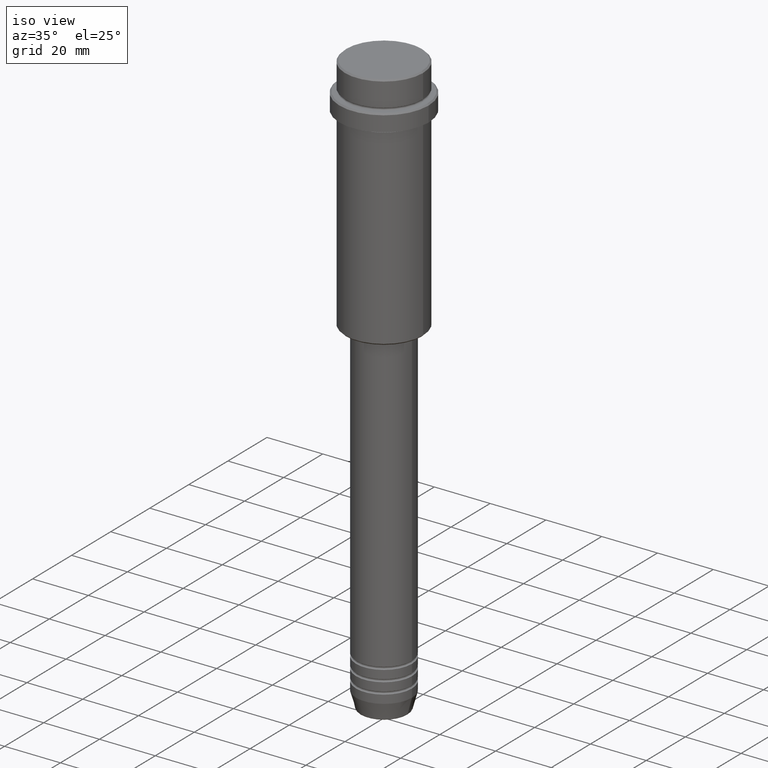
[diagram: clean part render]
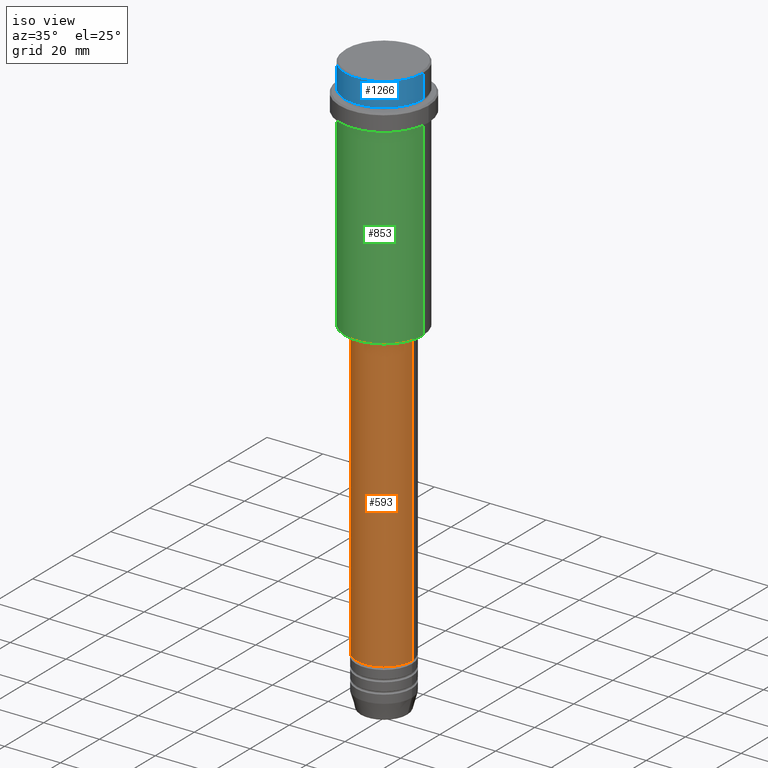
[diagram: same view with three faces highlighted in distinct colors, each labeled with its STEP entity id]
A machine part, iso view with three faces highlighted in distinct colors.
Their STEP definitions:

[orange] entity #593 — the highlighted cylindrical surface (edge-blend (fillet) strip) has radius 10 mm, axis along (-0, -0, 1).
#137 = EDGE_LOOP ( 'NONE', ( #684, #212, #183, #607 ) ) ;
#158 = VERTEX_POINT ( 'NONE', #636 ) ;
#176 = FACE_OUTER_BOUND ( 'NONE', #137, .T. ) ;
#183 = ORIENTED_EDGE ( 'NONE', *, *, #294, .T. ) ;
#212 = ORIENTED_EDGE ( 'NONE', *, *, #519, .T. ) ;
#280 = VECTOR ( 'NONE', #1124, 1000.000000000000000 ) ;
#294 = EDGE_CURVE ( 'NONE', #804, #501, #676, .T. ) ;
#295 = CARTESIAN_POINT ( 'NONE',  ( 10.00000000000000000, 0.000000000000000000, -191.9999999999999147 ) ) ;
#389 = AXIS2_PLACEMENT_3D ( 'NONE', #1255, #527, #936 ) ;
#405 = DIRECTION ( 'NONE',  ( -0.000000000000000000, -0.000000000000000000, 1.000000000000000000 ) ) ;
#406 = EDGE_CURVE ( 'NONE', #1026, #158, #1076, .T. ) ;
#413 = DIRECTION ( 'NONE',  ( 1.000000000000000000, 0.000000000000000000, 0.000000000000000000 ) ) ;
#440 = DIRECTION ( 'NONE',  ( -0.000000000000000000, -0.000000000000000000, 1.000000000000000000 ) ) ;
#459 = VECTOR ( 'NONE', #440, 1000.000000000000000 ) ;
#480 = CIRCLE ( 'NONE', #389, 10.00000000000000000 ) ;
#501 = VERTEX_POINT ( 'NONE', #944 ) ;
#519 = EDGE_CURVE ( 'NONE', #1026, #804, #480, .T. ) ;
#527 = DIRECTION ( 'NONE',  ( -0.000000000000000000, -0.000000000000000000, 1.000000000000000000 ) ) ;
#592 = EDGE_CURVE ( 'NONE', #158, #501, #1055, .T. ) ;
#593 = ADVANCED_FACE ( 'NONE', ( #176 ), #1190, .T. ) ;
#607 = ORIENTED_EDGE ( 'NONE', *, *, #592, .F. ) ;
#636 = CARTESIAN_POINT ( 'NONE',  ( -10.00000000000000178, 1.224646799147353454E-15, -87.00000000000000000 ) ) ;
#644 = CARTESIAN_POINT ( 'NONE',  ( 0.000000000000000000, 0.000000000000000000, -87.00000000000000000 ) ) ;
#676 = LINE ( 'NONE', #753, #459 ) ;
#684 = ORIENTED_EDGE ( 'NONE', *, *, #406, .F. ) ;
#753 = CARTESIAN_POINT ( 'NONE',  ( 10.00000000000000178, 0.000000000000000000, 0.000000000000000000 ) ) ;
#755 = DIRECTION ( 'NONE',  ( 1.000000000000000000, 0.000000000000000000, 0.000000000000000000 ) ) ;
#804 = VERTEX_POINT ( 'NONE', #295 ) ;
#936 = DIRECTION ( 'NONE',  ( 1.000000000000000000, 0.000000000000000000, 0.000000000000000000 ) ) ;
#944 = CARTESIAN_POINT ( 'NONE',  ( 10.00000000000000178, 0.000000000000000000, -87.00000000000000000 ) ) ;
#1026 = VERTEX_POINT ( 'NONE', #1242 ) ;
#1033 = AXIS2_PLACEMENT_3D ( 'NONE', #644, #405, #413 ) ;
#1055 = CIRCLE ( 'NONE', #1033, 10.00000000000000178 ) ;
#1076 = LINE ( 'NONE', #1207, #280 ) ;
#1124 = DIRECTION ( 'NONE',  ( -0.000000000000000000, -0.000000000000000000, 1.000000000000000000 ) ) ;
#1190 = CYLINDRICAL_SURFACE ( 'NONE', #1410, 10.00000000000000178 ) ;
#1207 = CARTESIAN_POINT ( 'NONE',  ( -10.00000000000000178, 1.224646799147353454E-15, 0.000000000000000000 ) ) ;
#1242 = CARTESIAN_POINT ( 'NONE',  ( -10.00000000000000000, 1.224646799147353256E-15, -191.9999999999999147 ) ) ;
#1255 = CARTESIAN_POINT ( 'NONE',  ( 0.000000000000000000, 0.000000000000000000, -191.9999999999999147 ) ) ;
#1278 = DIRECTION ( 'NONE',  ( -0.000000000000000000, -0.000000000000000000, 1.000000000000000000 ) ) ;
#1293 = CARTESIAN_POINT ( 'NONE',  ( 0.000000000000000000, 0.000000000000000000, 0.000000000000000000 ) ) ;
#1410 = AXIS2_PLACEMENT_3D ( 'NONE', #1293, #1278, #755 ) ;

[blue] entity #1266 — the highlighted cylindrical surface (partial cylindrical patch) has radius 14 mm, axis along (-0, -0, 1).
#10 = CARTESIAN_POINT ( 'NONE',  ( 0.000000000000000000, 0.000000000000000000, -0.4999999999999917843 ) ) ;
#26 = ORIENTED_EDGE ( 'NONE', *, *, #103, .T. ) ;
#30 = VERTEX_POINT ( 'NONE', #1383 ) ;
#39 = VECTOR ( 'NONE', #1307, 1000.000000000000000 ) ;
#79 = DIRECTION ( 'NONE',  ( 1.000000000000000000, 0.000000000000000000, 0.000000000000000000 ) ) ;
#92 = VECTOR ( 'NONE', #1092, 1000.000000000000000 ) ;
#103 = EDGE_CURVE ( 'NONE', #832, #487, #824, .T. ) ;
#129 = DIRECTION ( 'NONE',  ( -0.000000000000000000, -0.000000000000000000, 1.000000000000000000 ) ) ;
#174 = CARTESIAN_POINT ( 'NONE',  ( 0.000000000000000000, 0.000000000000000000, 0.000000000000000000 ) ) ;
#224 = DIRECTION ( 'NONE',  ( 1.000000000000000000, 0.000000000000000000, 0.000000000000000000 ) ) ;
#298 = EDGE_CURVE ( 'NONE', #605, #832, #1096, .T. ) ;
#359 = EDGE_CURVE ( 'NONE', #30, #605, #916, .T. ) ;
#382 = ORIENTED_EDGE ( 'NONE', *, *, #359, .T. ) ;
#481 = EDGE_LOOP ( 'NONE', ( #1140, #382, #972, #26 ) ) ;
#487 = VERTEX_POINT ( 'NONE', #1169 ) ;
#516 = CARTESIAN_POINT ( 'NONE',  ( 13.99999999999998401, 0.000000000000000000, -0.4999999999999917843 ) ) ;
#522 = LINE ( 'NONE', #1309, #92 ) ;
#572 = DIRECTION ( 'NONE',  ( 1.000000000000000000, 0.000000000000000000, 0.000000000000000000 ) ) ;
#605 = VERTEX_POINT ( 'NONE', #1065 ) ;
#612 = DIRECTION ( 'NONE',  ( -0.000000000000000000, -0.000000000000000000, 1.000000000000000000 ) ) ;
#722 = CYLINDRICAL_SURFACE ( 'NONE', #1417, 13.99999999999998401 ) ;
#790 = AXIS2_PLACEMENT_3D ( 'NONE', #1118, #129, #572 ) ;
#824 = CIRCLE ( 'NONE', #1149, 13.99999999999998401 ) ;
#832 = VERTEX_POINT ( 'NONE', #516 ) ;
#881 = EDGE_CURVE ( 'NONE', #30, #487, #522, .T. ) ;
#894 = DIRECTION ( 'NONE',  ( 0.000000000000000000, 0.000000000000000000, -1.000000000000000000 ) ) ;
#916 = CIRCLE ( 'NONE', #790, 13.99999999999997158 ) ;
#972 = ORIENTED_EDGE ( 'NONE', *, *, #298, .T. ) ;
#1065 = CARTESIAN_POINT ( 'NONE',  ( 13.99999999999997158, 0.000000000000000000, -8.999999999999998224 ) ) ;
#1092 = DIRECTION ( 'NONE',  ( -0.000000000000000000, -0.000000000000000000, 1.000000000000000000 ) ) ;
#1096 = LINE ( 'NONE', #1194, #39 ) ;
#1118 = CARTESIAN_POINT ( 'NONE',  ( 0.000000000000000000, 0.000000000000000000, -8.999999999999998224 ) ) ;
#1140 = ORIENTED_EDGE ( 'NONE', *, *, #881, .F. ) ;
#1149 = AXIS2_PLACEMENT_3D ( 'NONE', #10, #894, #224 ) ;
#1169 = CARTESIAN_POINT ( 'NONE',  ( -13.99999999999998401, 1.714505518806292666E-15, -0.4999999999999917843 ) ) ;
#1187 = FACE_OUTER_BOUND ( 'NONE', #481, .T. ) ;
#1194 = CARTESIAN_POINT ( 'NONE',  ( 13.99999999999998401, 0.000000000000000000, 0.000000000000000000 ) ) ;
#1266 = ADVANCED_FACE ( 'NONE', ( #1187 ), #722, .T. ) ;
#1307 = DIRECTION ( 'NONE',  ( -0.000000000000000000, -0.000000000000000000, 1.000000000000000000 ) ) ;
#1309 = CARTESIAN_POINT ( 'NONE',  ( -13.99999999999998401, 1.714505518806292666E-15, 0.000000000000000000 ) ) ;
#1383 = CARTESIAN_POINT ( 'NONE',  ( -13.99999999999997158, 1.714505518806291877E-15, -8.999999999999998224 ) ) ;
#1417 = AXIS2_PLACEMENT_3D ( 'NONE', #174, #612, #79 ) ;

[green] entity #853 — the highlighted cylindrical surface (partial cylindrical patch) has radius 14 mm, axis along (-0, -0, 1).
#2 = CARTESIAN_POINT ( 'NONE',  ( -13.99999999999998401, 1.714505518806292666E-15, -85.50000000000002842 ) ) ;
#46 = FACE_OUTER_BOUND ( 'NONE', #168, .T. ) ;
#69 = CARTESIAN_POINT ( 'NONE',  ( 0.000000000000000000, 0.000000000000000000, -17.00000000000000355 ) ) ;
#161 = CARTESIAN_POINT ( 'NONE',  ( 13.99999999999998401, 0.000000000000000000, -85.50000000000002842 ) ) ;
#165 = CIRCLE ( 'NONE', #702, 13.99999999999998401 ) ;
#168 = EDGE_LOOP ( 'NONE', ( #483, #1235, #1042, #339 ) ) ;
#198 = CARTESIAN_POINT ( 'NONE',  ( 13.99999999999998401, 0.000000000000000000, 0.000000000000000000 ) ) ;
#318 = EDGE_CURVE ( 'NONE', #1328, #1069, #165, .T. ) ;
#326 = AXIS2_PLACEMENT_3D ( 'NONE', #69, #737, #835 ) ;
#339 = ORIENTED_EDGE ( 'NONE', *, *, #541, .F. ) ;
#483 = ORIENTED_EDGE ( 'NONE', *, *, #1094, .F. ) ;
#541 = EDGE_CURVE ( 'NONE', #1298, #1248, #935, .T. ) ;
#542 = CARTESIAN_POINT ( 'NONE',  ( 0.000000000000000000, 0.000000000000000000, -85.50000000000002842 ) ) ;
#549 = DIRECTION ( 'NONE',  ( -1.000000000000000000, 0.000000000000000000, 0.000000000000000000 ) ) ;
#655 = LINE ( 'NONE', #198, #920 ) ;
#702 = AXIS2_PLACEMENT_3D ( 'NONE', #542, #1200, #549 ) ;
#706 = VECTOR ( 'NONE', #1038, 1000.000000000000000 ) ;
#737 = DIRECTION ( 'NONE',  ( -0.000000000000000000, -0.000000000000000000, 1.000000000000000000 ) ) ;
#814 = DIRECTION ( 'NONE',  ( -0.000000000000000000, -0.000000000000000000, 1.000000000000000000 ) ) ;
#835 = DIRECTION ( 'NONE',  ( 1.000000000000000000, 0.000000000000000000, 0.000000000000000000 ) ) ;
#844 = CYLINDRICAL_SURFACE ( 'NONE', #876, 13.99999999999998401 ) ;
#853 = ADVANCED_FACE ( 'NONE', ( #46 ), #844, .T. ) ;
#876 = AXIS2_PLACEMENT_3D ( 'NONE', #1281, #814, #1260 ) ;
#920 = VECTOR ( 'NONE', #986, 1000.000000000000000 ) ;
#935 = CIRCLE ( 'NONE', #326, 13.99999999999997158 ) ;
#986 = DIRECTION ( 'NONE',  ( -0.000000000000000000, -0.000000000000000000, 1.000000000000000000 ) ) ;
#1038 = DIRECTION ( 'NONE',  ( -0.000000000000000000, -0.000000000000000000, 1.000000000000000000 ) ) ;
#1042 = ORIENTED_EDGE ( 'NONE', *, *, #1308, .T. ) ;
#1061 = CARTESIAN_POINT ( 'NONE',  ( 13.99999999999997158, 0.000000000000000000, -17.00000000000000355 ) ) ;
#1069 = VERTEX_POINT ( 'NONE', #161 ) ;
#1094 = EDGE_CURVE ( 'NONE', #1328, #1298, #1170, .T. ) ;
#1170 = LINE ( 'NONE', #1270, #706 ) ;
#1200 = DIRECTION ( 'NONE',  ( -0.000000000000000000, -0.000000000000000000, 1.000000000000000000 ) ) ;
#1235 = ORIENTED_EDGE ( 'NONE', *, *, #318, .T. ) ;
#1248 = VERTEX_POINT ( 'NONE', #1061 ) ;
#1260 = DIRECTION ( 'NONE',  ( 1.000000000000000000, 0.000000000000000000, 0.000000000000000000 ) ) ;
#1270 = CARTESIAN_POINT ( 'NONE',  ( -13.99999999999998401, 1.714505518806292666E-15, 0.000000000000000000 ) ) ;
#1272 = CARTESIAN_POINT ( 'NONE',  ( -13.99999999999997158, 1.714505518806291877E-15, -17.00000000000000355 ) ) ;
#1281 = CARTESIAN_POINT ( 'NONE',  ( 0.000000000000000000, 0.000000000000000000, 0.000000000000000000 ) ) ;
#1298 = VERTEX_POINT ( 'NONE', #1272 ) ;
#1308 = EDGE_CURVE ( 'NONE', #1069, #1248, #655, .T. ) ;
#1328 = VERTEX_POINT ( 'NONE', #2 ) ;